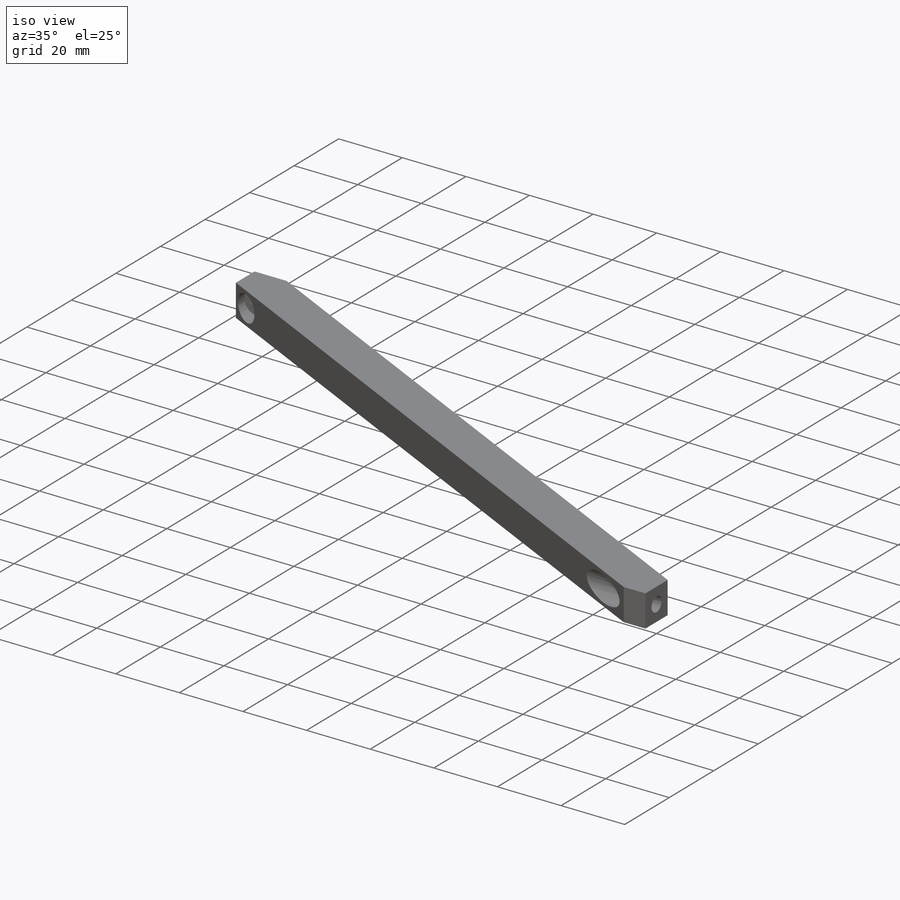
[diagram: iso view]
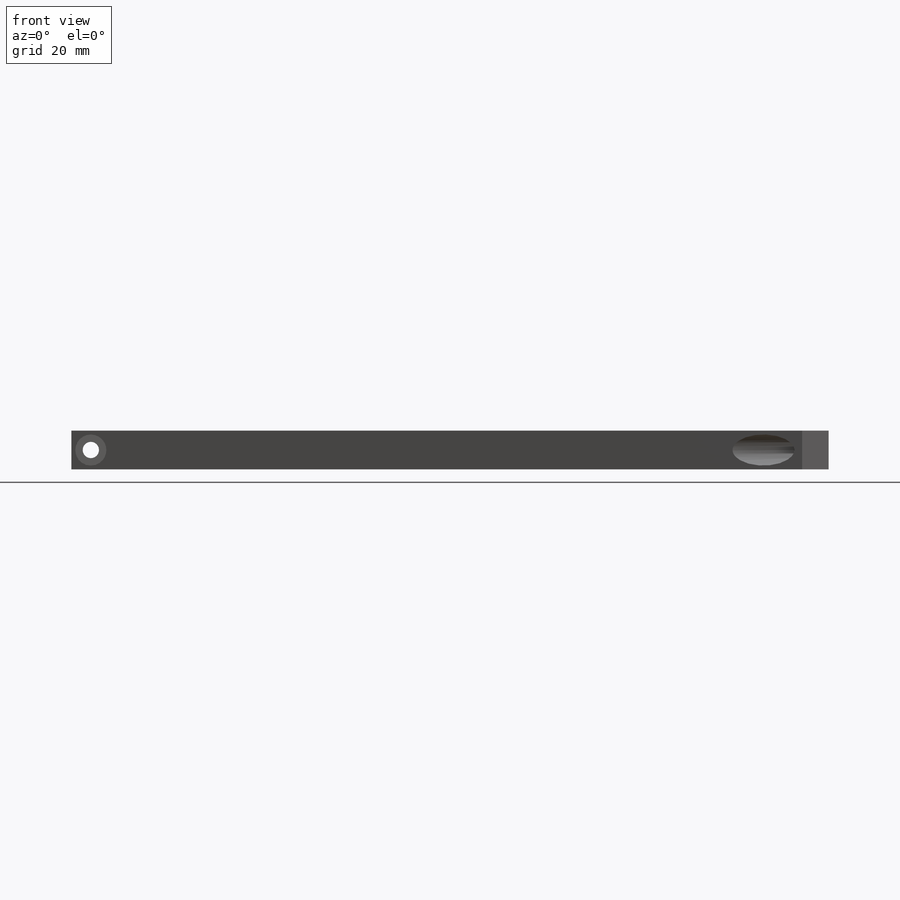
[diagram: front view]
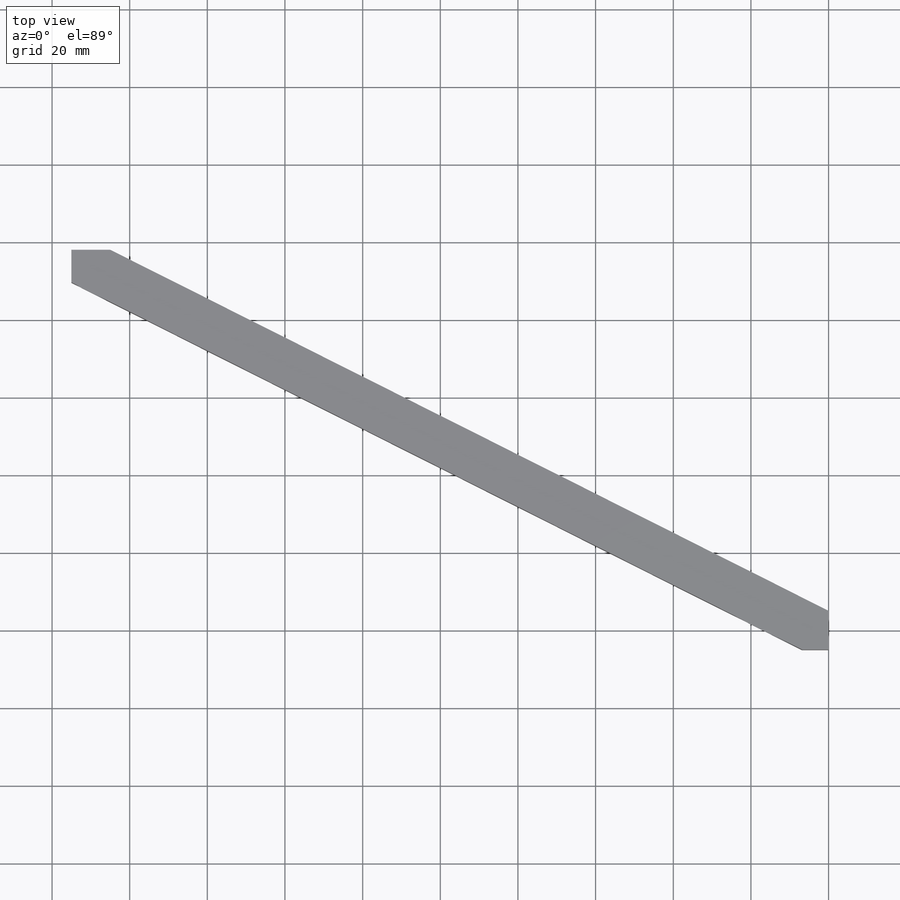
[diagram: top view]
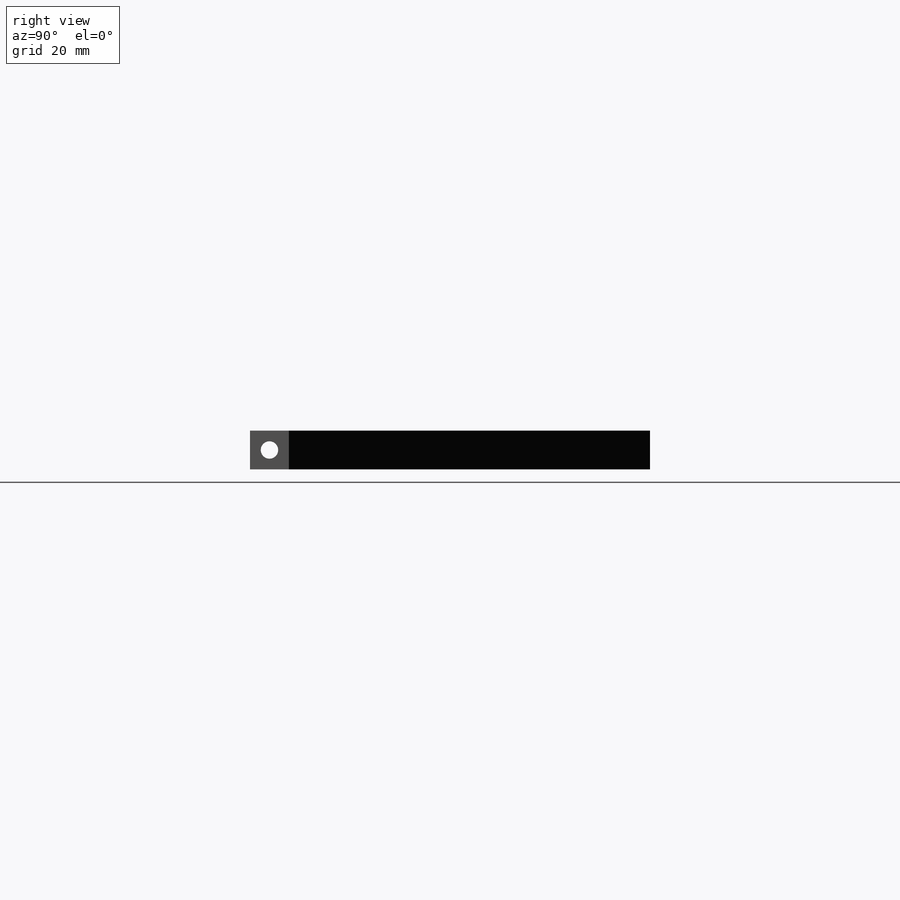
[diagram: right view]
SOLIDWORKS PART (.sldprt)
format: sldprt  version: not decoded by parser v0  size: 223,744 bytes
history: native  units: mm
features: sketch x6, plane x5, cut_extrude x3, material x1, extrude x1, hole x1 (+11 scaffold rows collapsed)
feature tree (28):
  scaffold x11  (default folders/planes/origin — collapsed)
  material  "3.1325 (EN-AW 2017A)"
  plane  "Face"
  plane  "Dessus"
  plane  "Droite"
  sketch  "Esquisse1"  dims[D1=225.0mm D2=10.0mm D3=10.0mm D4=5.0mm D5=120.0mm D6=40.0mm D7=22.0mm D8=12.0mm]
  extrude  "Boss.-Extru.1"  Depth=10mm
  sketch  "Esquisse4"  dims[c1.D1=4.2mm c1.D2=4.2mm c2.D1=5.0mm c2.D2=5.0mm]
  cut_extrude  "Enlèv. mat.-Extru.1"  [1 undecoded]
  hole  "Dégagement M41"  Diameter=4.5mm Depth=195mm
  sketch  "Esquisse6"  dims[D1=5.0mm D2=5.0mm]
  sketch  "Esquisse5"  dims[hole-wizard template sketch: 60 standard entries collapsed; hole parameters kept: c18.Profondeur du perçage jusqu'au prochain=195.0mm]
  plane  "Plan1"  Offset=6mm
  sketch  "Esquisse7"  dims[D1=~3.993662mm]
  cut_extrude  "Enlèv. mat.-Extru.2"  Depth=12mm
  plane  "Plan2"  Offset=6mm
  sketch  "Esquisse8"  dims[D1=~4.490071mm]
  cut_extrude  "Enlèv. mat.-Extru.3"  Depth=28mm
decode coverage: 10 of 11 modeling features carry decoded parameters
note: ~ marks probable driven/reference dimensions
note: 1 parameter value undecoded
note: suppression state not decoded; provenance and decode notes live in map.json
